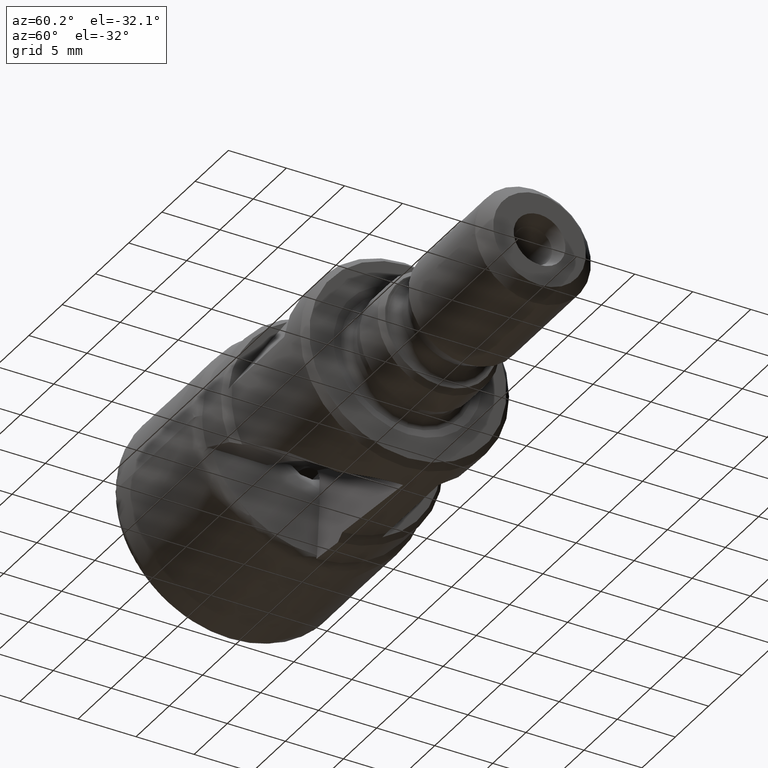
[diagram: clean part render]
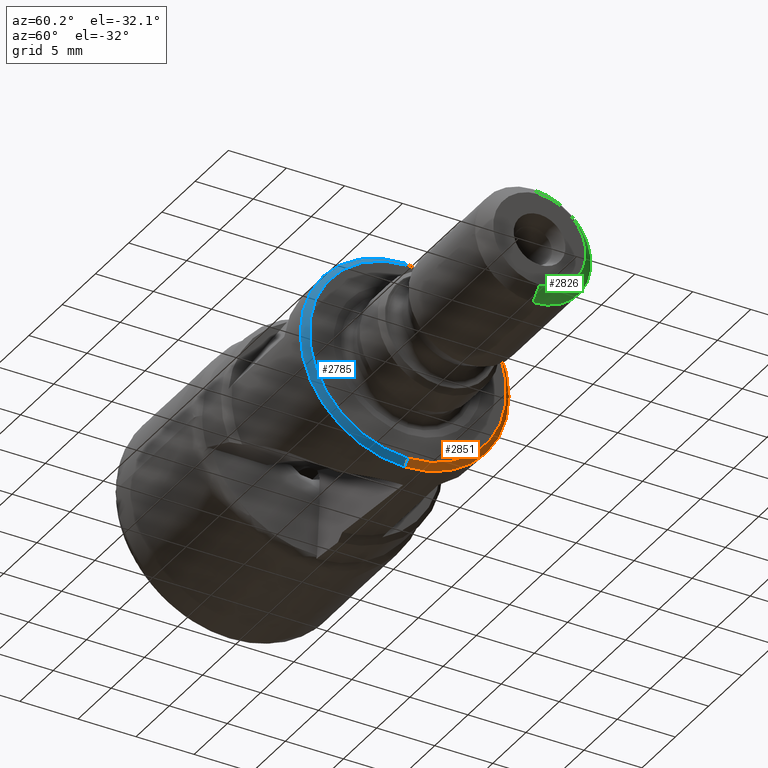
[diagram: same view with three faces highlighted in distinct colors, each labeled with its STEP entity id]
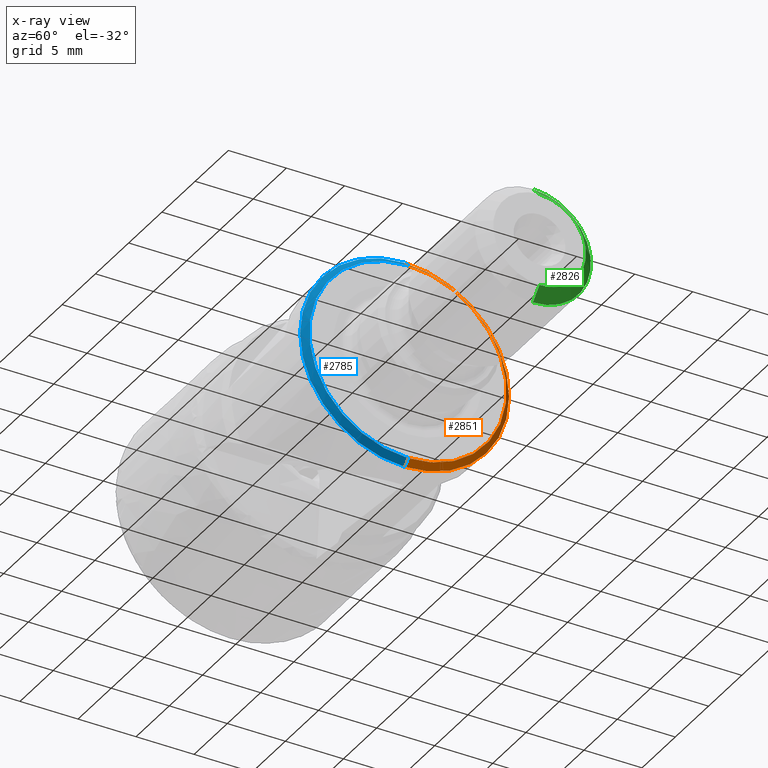
[diagram: x-ray of the same camera — body ghosted, the three highlighted faces saturated]
A machine part, auxiliary view with three faces highlighted in distinct colors.
The next image is the same camera in x-ray (body ghosted, the three faces saturated) — at least one of them is partly hidden behind the body in this view.
Their STEP definitions:

[orange] entity #2851 — the highlighted conical surface has half-angle 45 deg.
#88 = LINE ( 'NONE', #3026, #90 ) ;
#90 = VECTOR ( 'NONE', #3025, 1000.000000000000000 ) ;
#94 = CIRCLE ( 'NONE', #3551, 9.000000000000000000 ) ;
#635 = ORIENTED_EDGE ( 'NONE', *, *, #3727, .F. ) ;
#638 = ORIENTED_EDGE ( 'NONE', *, *, #3256, .T. ) ;
#654 = ORIENTED_EDGE ( 'NONE', *, *, #3718, .F. ) ;
#856 = CARTESIAN_POINT ( 'NONE',  ( 25.39999999999999900, 1.102182119232617700E-015, -9.000000000000000000 ) ) ;
#896 = CARTESIAN_POINT ( 'NONE',  ( 25.39999999999999900, 0.0000000000000000000, 9.000000000000000000 ) ) ;
#1051 = DIRECTION ( 'NONE',  ( -0.7071067811865475700, 8.659560562354931600E-017, -0.7071067811865474600 ) ) ;
#1055 = CARTESIAN_POINT ( 'NONE',  ( 25.89999999999999900, 1.040949779275249900E-015, -8.499999999999998200 ) ) ;
#1145 = LINE ( 'NONE', #1055, #1163 ) ;
#1163 = VECTOR ( 'NONE', #1051, 1000.000000000000000 ) ;
#1316 = VERTEX_POINT ( 'NONE', #3901 ) ;
#1391 = VERTEX_POINT ( 'NONE', #856 ) ;
#1404 = VERTEX_POINT ( 'NONE', #896 ) ;
#1444 = VERTEX_POINT ( 'NONE', #3171 ) ;
#1912 = DIRECTION ( 'NONE',  ( 0.0000000000000000000, 0.0000000000000000000, 1.000000000000000000 ) ) ;
#1913 = CARTESIAN_POINT ( 'NONE',  ( 25.89999999999999900, 0.0000000000000000000, 0.0000000000000000000 ) ) ;
#1914 = DIRECTION ( 'NONE',  ( -1.000000000000000000, -0.0000000000000000000, -0.0000000000000000000 ) ) ;
#2517 = CARTESIAN_POINT ( 'NONE',  ( 25.89999999999999900, 0.0000000000000000000, 0.0000000000000000000 ) ) ;
#2518 = DIRECTION ( 'NONE',  ( -1.000000000000000000, -0.0000000000000000000, -0.0000000000000000000 ) ) ;
#2519 = DIRECTION ( 'NONE',  ( 0.0000000000000000000, 0.0000000000000000000, 1.000000000000000000 ) ) ;
#2851 = ADVANCED_FACE ( 'NONE', ( #3572 ), #4027, .T. ) ;
#3003 = CIRCLE ( 'NONE', #3516, 8.499999999999998200 ) ;
#3025 = DIRECTION ( 'NONE',  ( -0.7071067811865475700, 0.0000000000000000000, 0.7071067811865474600 ) ) ;
#3026 = CARTESIAN_POINT ( 'NONE',  ( 25.89999999999999900, 0.0000000000000000000, 8.499999999999998200 ) ) ;
#3078 = CARTESIAN_POINT ( 'NONE',  ( 25.39999999999999900, 0.0000000000000000000, 0.0000000000000000000 ) ) ;
#3079 = DIRECTION ( 'NONE',  ( -1.000000000000000000, -0.0000000000000000000, -0.0000000000000000000 ) ) ;
#3080 = DIRECTION ( 'NONE',  ( 0.0000000000000000000, 0.0000000000000000000, 1.000000000000000000 ) ) ;
#3171 = CARTESIAN_POINT ( 'NONE',  ( 25.89999999999999900, 0.0000000000000000000, 8.499999999999998200 ) ) ;
#3256 = EDGE_CURVE ( 'NONE', #1316, #1391, #1145, .T. ) ;
#3376 = AXIS2_PLACEMENT_3D ( 'NONE', #1913, #1914, #1912 ) ;
#3516 = AXIS2_PLACEMENT_3D ( 'NONE', #2517, #2518, #2519 ) ;
#3551 = AXIS2_PLACEMENT_3D ( 'NONE', #3078, #3079, #3080 ) ;
#3572 = FACE_OUTER_BOUND ( 'NONE', #3941, .T. ) ;
#3632 = EDGE_CURVE ( 'NONE', #1444, #1316, #3003, .T. ) ;
#3718 = EDGE_CURVE ( 'NONE', #1444, #1404, #88, .T. ) ;
#3727 = EDGE_CURVE ( 'NONE', #1404, #1391, #94, .T. ) ;
#3901 = CARTESIAN_POINT ( 'NONE',  ( 25.89999999999999900, 1.071565949253933900E-015, -8.499999999999998200 ) ) ;
#3939 = ORIENTED_EDGE ( 'NONE', *, *, #3632, .T. ) ;
#3941 = EDGE_LOOP ( 'NONE', ( #3939, #638, #635, #654 ) ) ;
#4027 = CONICAL_SURFACE ( 'NONE', #3376, 8.499999999999998200, 0.7853981633974482800 ) ;

[blue] entity #2785 — the highlighted conical surface has half-angle 45 deg.
#88 = LINE ( 'NONE', #3026, #90 ) ;
#90 = VECTOR ( 'NONE', #3025, 1000.000000000000000 ) ;
#856 = CARTESIAN_POINT ( 'NONE',  ( 25.39999999999999900, 1.102182119232617700E-015, -9.000000000000000000 ) ) ;
#896 = CARTESIAN_POINT ( 'NONE',  ( 25.39999999999999900, 0.0000000000000000000, 9.000000000000000000 ) ) ;
#1051 = DIRECTION ( 'NONE',  ( -0.7071067811865475700, 8.659560562354931600E-017, -0.7071067811865474600 ) ) ;
#1055 = CARTESIAN_POINT ( 'NONE',  ( 25.89999999999999900, 1.040949779275249900E-015, -8.499999999999998200 ) ) ;
#1120 = CIRCLE ( 'NONE', #3378, 8.499999999999998200 ) ;
#1127 = CIRCLE ( 'NONE', #3523, 9.000000000000000000 ) ;
#1145 = LINE ( 'NONE', #1055, #1163 ) ;
#1163 = VECTOR ( 'NONE', #1051, 1000.000000000000000 ) ;
#1316 = VERTEX_POINT ( 'NONE', #3901 ) ;
#1391 = VERTEX_POINT ( 'NONE', #856 ) ;
#1404 = VERTEX_POINT ( 'NONE', #896 ) ;
#1444 = VERTEX_POINT ( 'NONE', #3171 ) ;
#1569 = ORIENTED_EDGE ( 'NONE', *, *, #3235, .T. ) ;
#1574 = ORIENTED_EDGE ( 'NONE', *, *, #3256, .F. ) ;
#1592 = ORIENTED_EDGE ( 'NONE', *, *, #3242, .F. ) ;
#1597 = ORIENTED_EDGE ( 'NONE', *, *, #3718, .T. ) ;
#1835 = EDGE_LOOP ( 'NONE', ( #1574, #1569, #1597, #1592 ) ) ;
#1956 = CARTESIAN_POINT ( 'NONE',  ( 25.89999999999999900, 0.0000000000000000000, 0.0000000000000000000 ) ) ;
#1957 = DIRECTION ( 'NONE',  ( -1.000000000000000000, -0.0000000000000000000, -0.0000000000000000000 ) ) ;
#1958 = DIRECTION ( 'NONE',  ( 0.0000000000000000000, 0.0000000000000000000, 1.000000000000000000 ) ) ;
#1985 = CARTESIAN_POINT ( 'NONE',  ( 25.39999999999999900, 0.0000000000000000000, 0.0000000000000000000 ) ) ;
#1986 = DIRECTION ( 'NONE',  ( -1.000000000000000000, -0.0000000000000000000, -0.0000000000000000000 ) ) ;
#1987 = DIRECTION ( 'NONE',  ( 0.0000000000000000000, 0.0000000000000000000, 1.000000000000000000 ) ) ;
#2785 = ADVANCED_FACE ( 'NONE', ( #3823 ), #3830, .T. ) ;
#3025 = DIRECTION ( 'NONE',  ( -0.7071067811865475700, 0.0000000000000000000, 0.7071067811865474600 ) ) ;
#3026 = CARTESIAN_POINT ( 'NONE',  ( 25.89999999999999900, 0.0000000000000000000, 8.499999999999998200 ) ) ;
#3171 = CARTESIAN_POINT ( 'NONE',  ( 25.89999999999999900, 0.0000000000000000000, 8.499999999999998200 ) ) ;
#3235 = EDGE_CURVE ( 'NONE', #1316, #1444, #1120, .T. ) ;
#3242 = EDGE_CURVE ( 'NONE', #1391, #1404, #1127, .T. ) ;
#3256 = EDGE_CURVE ( 'NONE', #1316, #1391, #1145, .T. ) ;
#3270 = AXIS2_PLACEMENT_3D ( 'NONE', #4208, #4210, #4211 ) ;
#3378 = AXIS2_PLACEMENT_3D ( 'NONE', #1956, #1957, #1958 ) ;
#3523 = AXIS2_PLACEMENT_3D ( 'NONE', #1985, #1986, #1987 ) ;
#3718 = EDGE_CURVE ( 'NONE', #1444, #1404, #88, .T. ) ;
#3823 = FACE_OUTER_BOUND ( 'NONE', #1835, .T. ) ;
#3830 = CONICAL_SURFACE ( 'NONE', #3270, 8.499999999999998200, 0.7853981633974482800 ) ;
#3901 = CARTESIAN_POINT ( 'NONE',  ( 25.89999999999999900, 1.071565949253933900E-015, -8.499999999999998200 ) ) ;
#4208 = CARTESIAN_POINT ( 'NONE',  ( 25.89999999999999900, 0.0000000000000000000, 0.0000000000000000000 ) ) ;
#4210 = DIRECTION ( 'NONE',  ( -1.000000000000000000, -0.0000000000000000000, -0.0000000000000000000 ) ) ;
#4211 = DIRECTION ( 'NONE',  ( 0.0000000000000000000, 0.0000000000000000000, 1.000000000000000000 ) ) ;

[green] entity #2826 — the highlighted conical surface has half-angle 45 deg.
#74 = CIRCLE ( 'NONE', #3549, 5.000000000000000000 ) ;
#78 = LINE ( 'NONE', #3027, #85 ) ;
#81 = CIRCLE ( 'NONE', #3431, 4.000000000000000000 ) ;
#84 = LINE ( 'NONE', #3031, #87 ) ;
#85 = VECTOR ( 'NONE', #3018, 999.9999999999998900 ) ;
#87 = VECTOR ( 'NONE', #3032, 999.9999999999998900 ) ;
#150 = DIRECTION ( 'NONE',  ( 0.0000000000000000000, 0.0000000000000000000, 1.000000000000000000 ) ) ;
#165 = CARTESIAN_POINT ( 'NONE',  ( 45.70000000000000300, 0.0000000000000000000, 0.0000000000000000000 ) ) ;
#166 = DIRECTION ( 'NONE',  ( -1.000000000000000000, -0.0000000000000000000, -0.0000000000000000000 ) ) ;
#800 = CARTESIAN_POINT ( 'NONE',  ( 44.70000000000000300, 6.123233995736766300E-016, -5.000000000000000000 ) ) ;
#802 = CARTESIAN_POINT ( 'NONE',  ( 45.70000000000000300, 5.510910596163088600E-016, -4.000000000000000000 ) ) ;
#827 = CARTESIAN_POINT ( 'NONE',  ( 44.70000000000000300, 0.0000000000000000000, 5.000000000000000000 ) ) ;
#829 = CARTESIAN_POINT ( 'NONE',  ( 45.70000000000000300, 0.0000000000000000000, 4.000000000000000000 ) ) ;
#833 = CONICAL_SURFACE ( 'NONE', #3428, 4.000000000000000000, 0.7853981633974479500 ) ;
#835 = FACE_OUTER_BOUND ( 'NONE', #3916, .T. ) ;
#1345 = VERTEX_POINT ( 'NONE', #800 ) ;
#1361 = VERTEX_POINT ( 'NONE', #829 ) ;
#1365 = VERTEX_POINT ( 'NONE', #802 ) ;
#1369 = VERTEX_POINT ( 'NONE', #827 ) ;
#2826 = ADVANCED_FACE ( 'NONE', ( #835 ), #833, .T. ) ;
#3018 = DIRECTION ( 'NONE',  ( -0.7071067811865479100, 8.659560562354930400E-017, -0.7071067811865472400 ) ) ;
#3020 = CARTESIAN_POINT ( 'NONE',  ( 44.70000000000000300, 0.0000000000000000000, 0.0000000000000000000 ) ) ;
#3021 = DIRECTION ( 'NONE',  ( -1.000000000000000000, -0.0000000000000000000, -0.0000000000000000000 ) ) ;
#3022 = DIRECTION ( 'NONE',  ( 0.0000000000000000000, 0.0000000000000000000, 1.000000000000000000 ) ) ;
#3027 = CARTESIAN_POINT ( 'NONE',  ( 45.70000000000000300, 4.898587196589412800E-016, -4.000000000000000000 ) ) ;
#3028 = CARTESIAN_POINT ( 'NONE',  ( 45.70000000000000300, 0.0000000000000000000, 0.0000000000000000000 ) ) ;
#3029 = DIRECTION ( 'NONE',  ( -1.000000000000000000, -0.0000000000000000000, -0.0000000000000000000 ) ) ;
#3030 = DIRECTION ( 'NONE',  ( 0.0000000000000000000, 0.0000000000000000000, 1.000000000000000000 ) ) ;
#3031 = CARTESIAN_POINT ( 'NONE',  ( 45.70000000000000300, 0.0000000000000000000, 4.000000000000000000 ) ) ;
#3032 = DIRECTION ( 'NONE',  ( -0.7071067811865479100, 0.0000000000000000000, 0.7071067811865472400 ) ) ;
#3428 = AXIS2_PLACEMENT_3D ( 'NONE', #165, #166, #150 ) ;
#3431 = AXIS2_PLACEMENT_3D ( 'NONE', #3028, #3029, #3030 ) ;
#3549 = AXIS2_PLACEMENT_3D ( 'NONE', #3020, #3021, #3022 ) ;
#3711 = EDGE_CURVE ( 'NONE', #1369, #1345, #74, .T. ) ;
#3714 = EDGE_CURVE ( 'NONE', #1361, #1365, #81, .T. ) ;
#3715 = EDGE_CURVE ( 'NONE', #1365, #1345, #78, .T. ) ;
#3716 = EDGE_CURVE ( 'NONE', #1361, #1369, #84, .T. ) ;
#3916 = EDGE_LOOP ( 'NONE', ( #3997, #4028, #3981, #4102 ) ) ;
#3981 = ORIENTED_EDGE ( 'NONE', *, *, #3711, .F. ) ;
#3997 = ORIENTED_EDGE ( 'NONE', *, *, #3714, .T. ) ;
#4028 = ORIENTED_EDGE ( 'NONE', *, *, #3715, .T. ) ;
#4102 = ORIENTED_EDGE ( 'NONE', *, *, #3716, .F. ) ;